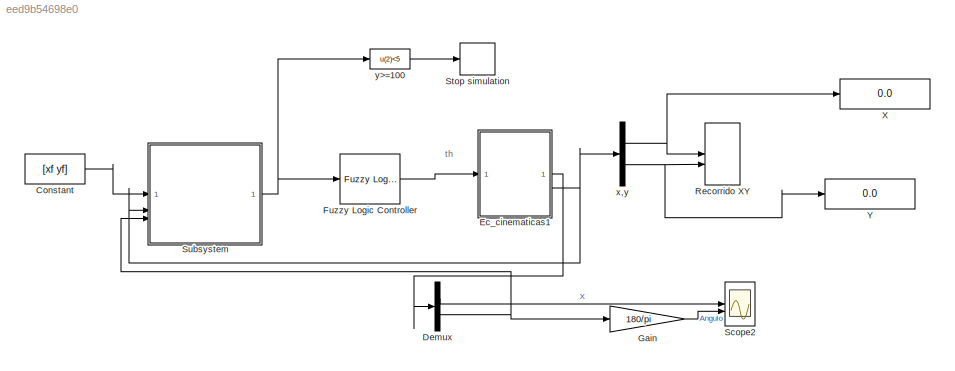
MODEL slx_eed9b54698e0
KIND model
CONFIG AbsTol = 1e-6
CONFIG EnableMultiTasking = off
CONFIG FixedStep = 0.1
CONFIG InitFcn = fismovil = readfis('movil.fis');
CONFIG MaxStep = 0.1
CONFIG MinStep = auto
CONFIG RelTol = 1e-3
CONFIG SampleTimeConstraint = Unconstrained
CONFIG SolverName = ode3
CONFIG StartTime = 0.0
CONFIG StopTime = Timesim
BLOCK [Constant] Constant
  Value = [xf yf]
BLOCK [Demux] Demux
  Outputs = 2
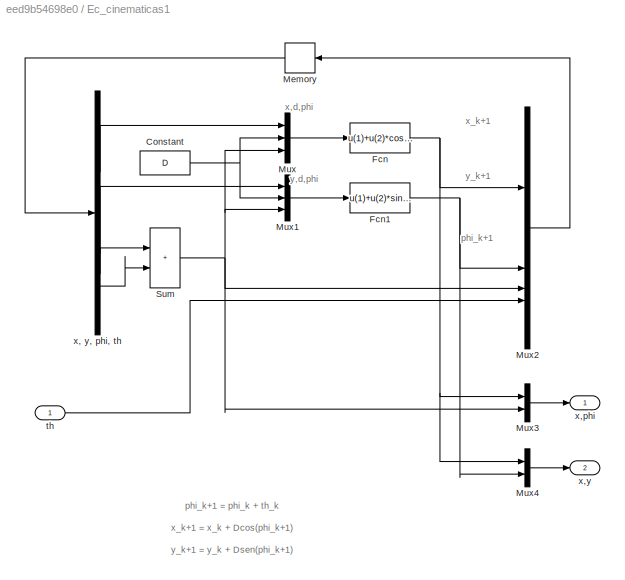
BLOCK [SubSystem] Ec_cinematicas1
BLOCK [Constant] Ec_cinematicas1/Constant
  Value = D
BLOCK [Fcn] Ec_cinematicas1/Fcn
  Expr = u(1)+u(2)*cos(u(3))
BLOCK [Fcn] Ec_cinematicas1/Fcn1
  Expr = u(1)+u(2)*sin(u(3))
BLOCK [Memory] Ec_cinematicas1/Memory
  InitialCondition = [X Y Phi 0]
  NameLocation = top
BLOCK [Mux] Ec_cinematicas1/Mux
  DisplayOption = bar
  Inputs = 3
BLOCK [Mux] Ec_cinematicas1/Mux1
  DisplayOption = bar
  Inputs = 3
BLOCK [Mux] Ec_cinematicas1/Mux2
  DisplayOption = bar
BLOCK [Mux] Ec_cinematicas1/Mux3
  DisplayOption = bar
  Inputs = 2
BLOCK [Mux] Ec_cinematicas1/Mux4
  DisplayOption = bar
  Inputs = 2
BLOCK [Sum] Ec_cinematicas1/Sum
  IconShape = rectangular
BLOCK [Inport] Ec_cinematicas1/th
BLOCK [Demux] Ec_cinematicas1/x, y, phi, th
BLOCK [Outport] Ec_cinematicas1/x,phi
BLOCK [Outport] Ec_cinematicas1/x,y
  Port = 2
BLOCK [Reference] Fuzzy Logic Controller  REF=fuzblock/Fuzzy Logic   (lib defined in mdl_858b3b3e7478)
Controller
  SourceBlock = fuzblock/Fuzzy Logic \nController
  SourceType = Fuzzy Inference System
BLOCK [Gain] Gain
  Gain = 180/pi
BLOCK [Record] Recorrido XY
  CompatibilityTag = XY
  FileSettingsInternal = {"entries":[{"content":{"excelSettings":{"content":{},"type":"Streamout.ExcelSettings"}},"type":"Streamout.FileSettingStorage","uuid":"7dcdacd9-9091-49d9-9ea7-95d86a0943a3"}],"packageUris":["http://schema.mathworks.com/mf0/streamout_blocks/R2020a"],"version":"1.0"}
  Layout = [1 1]
  SignalsInternal = {"entries":[{"content":{"signals":[{"content":{"blockPath":["truckaso2/Recorrido XY"],"channel":[],"dimensions":[1],"domain":"truckaso2/Recorrido XY","lineColor":"#a2142f","plots":[1],"port":1,"sid":[""],"signalID":39,"signalName":"x,y:1"},"type":"RecordBlkView.Signal","uuid":"6f5dfcf6-7128-426f-a57b-a5e084615930"},{"content":{"blockPath":["truckaso2/Recorrido XY"],"channel":[],"dimensions":[1],"d...<+375ch>
  VisualizationBindings = {"xyplotplugin":{"info":[{"series":[{"bindingParametersList":[{"parameter":"X-Axis","signalID":39,"signalName":"x,y:1"},{"parameter":"Y-Axis","signalID":43,"signalName":"x,y:2"}],"seriesID":36838}],"subplotID":1}]}}
  st = -1
BLOCK [Scope] Scope2
  Floating = off
  NumInputPorts = 2
  ScopeSpecificationString = Simulink.scopes.TimeScopeBlockCfg('CurrentConfiguration', extmgr.ConfigurationSet(extmgr.Configuration('Core','General UI',true),extmgr.Configuration('Core','Source UI',true),extmgr.Configuration('Sources','WiredSimulink',true,'DataLoggingSaveFormat','StructureWithTime','DataLoggingLimitDataPoints',true,'DataLoggingDecimation','1','DataLoggingDecimateData',true,'DataLoggingVariableName','ScopeData...<+2357ch>
BLOCK [Stop] Stop simulation
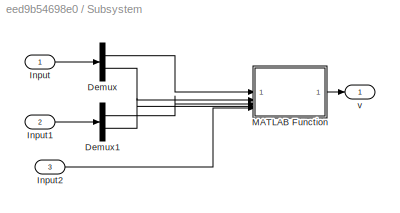
BLOCK [SubSystem] Subsystem
BLOCK [Demux] Subsystem/Demux
  Outputs = 2
BLOCK [Demux] Subsystem/Demux1
  Outputs = 2
BLOCK [Inport] Subsystem/Input
BLOCK [Inport] Subsystem/Input1
  Port = 2
BLOCK [Inport] Subsystem/Input2
  Port = 3
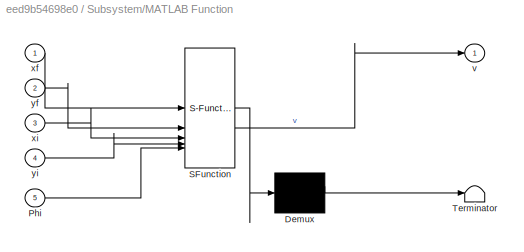
BLOCK [SubSystem] Subsystem/MATLAB Function
  ErrorFcn = Stateflow.Translate.translate
  LibrarySourceBlock = simulink/User-Defined\nFunctions/MATLAB Function
  PermitHierarchicalResolution = ExplicitOnly
  SFBlockType = MATLAB Function
  TreatAsAtomicUnit = on
BLOCK [Demux] Subsystem/MATLAB Function/ Demux 
  Outputs = 1
BLOCK [S-Function] Subsystem/MATLAB Function/ SFunction 
  EnableBusSupport = on
  FunctionName = sf_sfun
  PortCounts = [5 2]
  SFcnIsStateOwnerBlock = off
  SFunctionDeploymentMode = off
  Tag = Stateflow S-Function 2
BLOCK [Terminator] Subsystem/MATLAB Function/ Terminator 
BLOCK [Inport] Subsystem/MATLAB Function/Phi
  Port = 5
BLOCK [Outport] Subsystem/MATLAB Function/v
BLOCK [Inport] Subsystem/MATLAB Function/xf
BLOCK [Inport] Subsystem/MATLAB Function/xi
  Port = 3
BLOCK [Inport] Subsystem/MATLAB Function/yf
  Port = 2
BLOCK [Inport] Subsystem/MATLAB Function/yi
  Port = 4
BLOCK [Outport] Subsystem/v
BLOCK [Display] X
  Decimation = 1
BLOCK [Display] Y
  Decimation = 1
BLOCK [Demux] x,y
  Outputs = 2
BLOCK [Fcn] y>=100
  Expr = u(2)<5
ANNOTATION (root): th
ANNOTATION Ec_cinematicas1: phi_k+1
ANNOTATION Ec_cinematicas1: phi_k+1 = phi_k + th_k x_k+1 = x_k + Dcos(phi_k+1) y_k+1 = y_k + Dsen(phi_k+1)
ANNOTATION Ec_cinematicas1: x,d,phi
ANNOTATION Ec_cinematicas1: x_k+1
ANNOTATION Ec_cinematicas1: y,d,phi
ANNOTATION Ec_cinematicas1: y_k+1
LINE Constant:1 -> Subsystem:1
LINE Demux:1 -> Scope2:1
NET Demux:2 -> Gain:1, Subsystem:3
NET Ec_cinematicas1/Constant:1 -> Ec_cinematicas1/Mux1:2, Ec_cinematicas1/Mux:2
NET Ec_cinematicas1/Fcn1:1 -> Ec_cinematicas1/Mux2:2, Ec_cinematicas1/Mux4:2
NET Ec_cinematicas1/Fcn:1 -> Ec_cinematicas1/Mux2:1, Ec_cinematicas1/Mux3:1, Ec_cinematicas1/Mux4:1
LINE Ec_cinematicas1/Memory:1 -> Ec_cinematicas1/x, y, phi, th:1
LINE Ec_cinematicas1/Mux1:1 -> Ec_cinematicas1/Fcn1:1
LINE Ec_cinematicas1/Mux2:1 -> Ec_cinematicas1/Memory:1
LINE Ec_cinematicas1/Mux3:1 -> Ec_cinematicas1/x,phi:1
LINE Ec_cinematicas1/Mux4:1 -> Ec_cinematicas1/x,y:1
LINE Ec_cinematicas1/Mux:1 -> Ec_cinematicas1/Fcn:1
NET Ec_cinematicas1/Sum:1 -> Ec_cinematicas1/Mux1:3, Ec_cinematicas1/Mux2:3, Ec_cinematicas1/Mux3:2, Ec_cinematicas1/Mux:3
LINE Ec_cinematicas1/th:1 -> Ec_cinematicas1/Mux2:4
LINE Ec_cinematicas1/x, y, phi, th:1 -> Ec_cinematicas1/Mux:1
LINE Ec_cinematicas1/x, y, phi, th:2 -> Ec_cinematicas1/Mux1:1
LINE Ec_cinematicas1/x, y, phi, th:3 -> Ec_cinematicas1/Sum:1
LINE Ec_cinematicas1/x, y, phi, th:4 -> Ec_cinematicas1/Sum:2
LINE Ec_cinematicas1:1 -> Demux:1
NET Ec_cinematicas1:2 -> Subsystem:2, x,y:1
LINE Fuzzy Logic Controller:1 -> Ec_cinematicas1:1
LINE Gain:1 -> Scope2:2
LINE Subsystem/Demux1:1 -> Subsystem/MATLAB Function:3
LINE Subsystem/Demux1:2 -> Subsystem/MATLAB Function:4
LINE Subsystem/Demux:1 -> Subsystem/MATLAB Function:1
LINE Subsystem/Demux:2 -> Subsystem/MATLAB Function:2
LINE Subsystem/Input1:1 -> Subsystem/Demux1:1
LINE Subsystem/Input2:1 -> Subsystem/MATLAB Function:5
LINE Subsystem/Input:1 -> Subsystem/Demux:1
LINE Subsystem/MATLAB Function:1 -> Subsystem/v:1
NET Subsystem:1 -> Fuzzy Logic Controller:1, y>=100:1
NET x,y:1 -> Recorrido XY:1, X:1
NET x,y:2 -> Recorrido XY:2, Y:1
LINE y>=100:1 -> Stop simulation:1
note: NET lines group one-source signal fan-out (src -> all destinations, sorted); 1:1 wires keep LINE
CHART Subsystem/MATLAB Function states=1 transitions=1
  STATE_LABEL 'eML_blk_kernel()'
  STATE_LABEL 'SCRIPT:\n%  Cálculo de la DISTANCIA  que separa al móvil de su\n%  punto final y del ángulo GAMA necesario para calcular\n%  el ángulo ALFA, perteneciente al sistema de conducción de un móvil\n% u = [ xf ; yf ; xi ; yi ; Phi]\n% v = [ Alfa ; Distancia ] \n\n\nfunction v = Dist_Gama(xf, yf, xi, yi, Phi)\n\n% Cálculo de la distancia\n  dX        = abs(xf - xi);\n  dY        = abs(yf - yi); \n  distancia = sqrt(d...<+830ch>'
CHART  states=0 transitions=0
